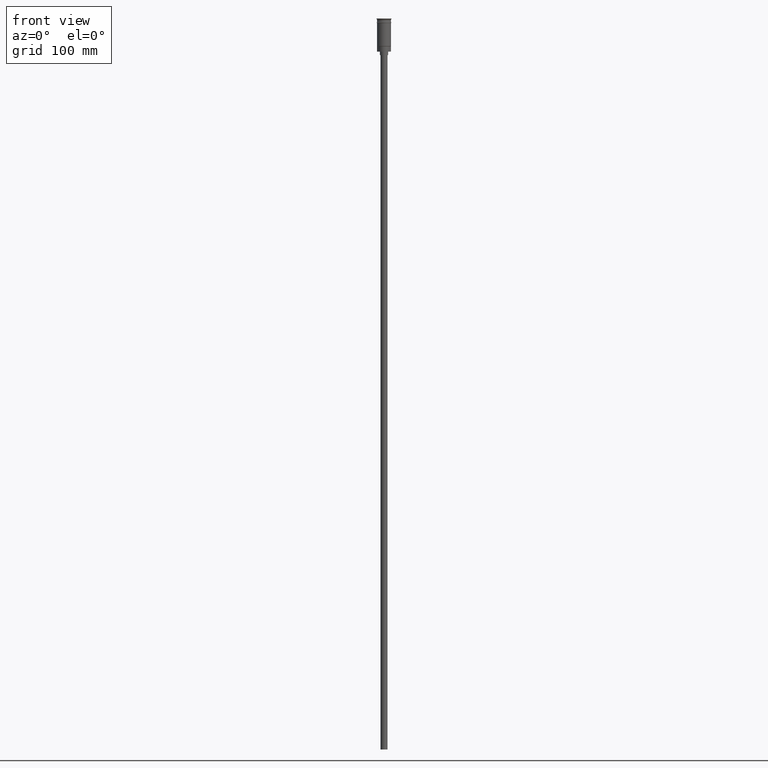
[diagram: clean part render]
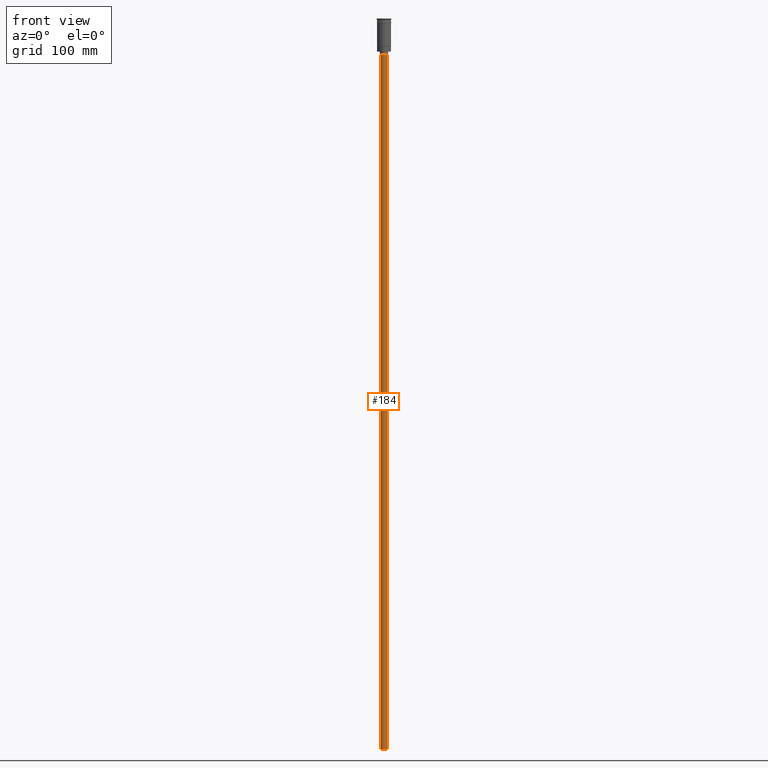
[diagram: same view with one face highlighted and labeled with its STEP entity id]
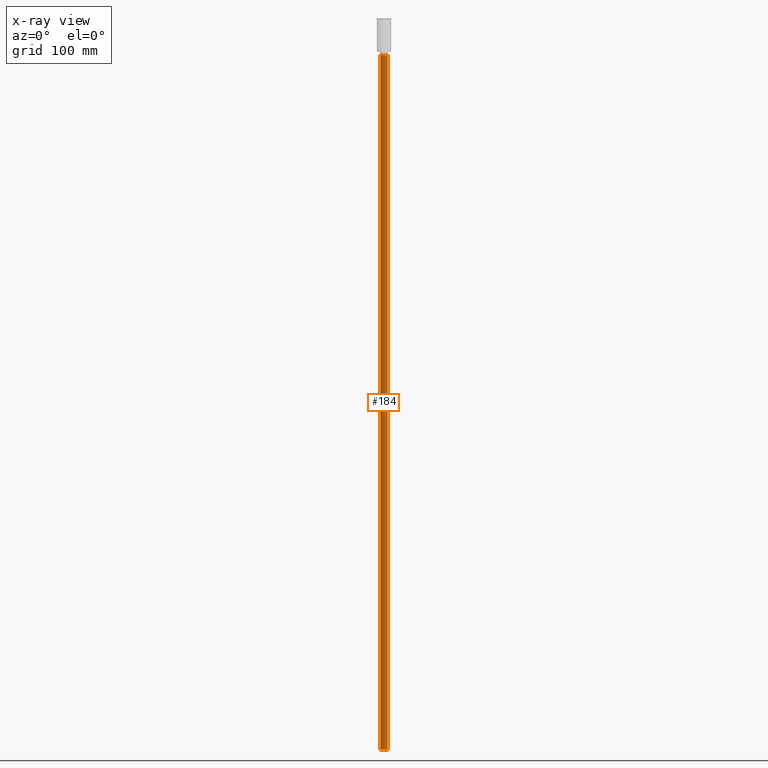
[diagram: x-ray of the same camera — body ghosted, the highlighted face saturated]
A machine part, front view. The second image highlights one B-rep face of the part: STEP entity #184.
The next image is the same camera in x-ray: the body ghosted, the highlighted face saturated — about 0% of this face is hidden behind the body in this view.
In plain terms, the highlighted cylindrical surface (edge-blend (fillet) strip) has radius 3 mm, axis along (-0, -0, 1).
Its self-contained STEP definition (entity closure, byte-faithful):
#15 = EDGE_LOOP ( 'NONE', ( #614, #791, #950, #1002 ) ) ;
#27 = CARTESIAN_POINT ( 'NONE',  ( -3.000000000000000444, 3.673940397442060361E-16, -628.5000000000000000 ) ) ;
#87 = VERTEX_POINT ( 'NONE', #1112 ) ;
#142 = VERTEX_POINT ( 'NONE', #356 ) ;
#149 = DIRECTION ( 'NONE',  ( -0.000000000000000000, -0.000000000000000000, 1.000000000000000000 ) ) ;
#184 = ADVANCED_FACE ( 'NONE', ( #1305 ), #185, .T. ) ;
#185 = CYLINDRICAL_SURFACE ( 'NONE', #1326, 3.000000000000000444 ) ;
#262 = AXIS2_PLACEMENT_3D ( 'NONE', #1507, #427, #1025 ) ;
#270 = EDGE_CURVE ( 'NONE', #87, #357, #272, .T. ) ;
#272 = LINE ( 'NONE', #1267, #1446 ) ;
#273 = VERTEX_POINT ( 'NONE', #27 ) ;
#323 = DIRECTION ( 'NONE',  ( -0.000000000000000000, -0.000000000000000000, 1.000000000000000000 ) ) ;
#342 = EDGE_CURVE ( 'NONE', #87, #273, #815, .T. ) ;
#356 = CARTESIAN_POINT ( 'NONE',  ( -3.000000000000000444, 3.673940397442060361E-16, -31.50000000000000000 ) ) ;
#357 = VERTEX_POINT ( 'NONE', #780 ) ;
#427 = DIRECTION ( 'NONE',  ( 0.000000000000000000, 0.000000000000000000, -1.000000000000000000 ) ) ;
#469 = EDGE_CURVE ( 'NONE', #273, #142, #1472, .T. ) ;
#473 = AXIS2_PLACEMENT_3D ( 'NONE', #1399, #1448, #1055 ) ;
#555 = CIRCLE ( 'NONE', #262, 3.000000000000000444 ) ;
#614 = ORIENTED_EDGE ( 'NONE', *, *, #469, .F. ) ;
#736 = DIRECTION ( 'NONE',  ( -0.000000000000000000, -0.000000000000000000, 1.000000000000000000 ) ) ;
#780 = CARTESIAN_POINT ( 'NONE',  ( 3.000000000000000444, 0.000000000000000000, -31.50000000000000000 ) ) ;
#786 = VECTOR ( 'NONE', #736, 1000.000000000000000 ) ;
#791 = ORIENTED_EDGE ( 'NONE', *, *, #342, .F. ) ;
#815 = CIRCLE ( 'NONE', #473, 3.000000000000000444 ) ;
#828 = DIRECTION ( 'NONE',  ( 1.000000000000000000, 0.000000000000000000, 0.000000000000000000 ) ) ;
#950 = ORIENTED_EDGE ( 'NONE', *, *, #270, .T. ) ;
#1002 = ORIENTED_EDGE ( 'NONE', *, *, #1516, .T. ) ;
#1025 = DIRECTION ( 'NONE',  ( -1.000000000000000000, 0.000000000000000000, 0.000000000000000000 ) ) ;
#1055 = DIRECTION ( 'NONE',  ( -1.000000000000000000, 0.000000000000000000, 0.000000000000000000 ) ) ;
#1112 = CARTESIAN_POINT ( 'NONE',  ( 3.000000000000000444, 0.000000000000000000, -628.5000000000000000 ) ) ;
#1267 = CARTESIAN_POINT ( 'NONE',  ( 3.000000000000000444, 0.000000000000000000, -628.5000000000000000 ) ) ;
#1305 = FACE_OUTER_BOUND ( 'NONE', #15, .T. ) ;
#1326 = AXIS2_PLACEMENT_3D ( 'NONE', #1518, #323, #828 ) ;
#1399 = CARTESIAN_POINT ( 'NONE',  ( 0.000000000000000000, 0.000000000000000000, -628.5000000000000000 ) ) ;
#1446 = VECTOR ( 'NONE', #149, 1000.000000000000000 ) ;
#1448 = DIRECTION ( 'NONE',  ( 0.000000000000000000, 0.000000000000000000, -1.000000000000000000 ) ) ;
#1472 = LINE ( 'NONE', #1480, #786 ) ;
#1480 = CARTESIAN_POINT ( 'NONE',  ( -3.000000000000000444, 3.673940397442060361E-16, -628.5000000000000000 ) ) ;
#1507 = CARTESIAN_POINT ( 'NONE',  ( 0.000000000000000000, 0.000000000000000000, -31.50000000000000000 ) ) ;
#1516 = EDGE_CURVE ( 'NONE', #357, #142, #555, .T. ) ;
#1518 = CARTESIAN_POINT ( 'NONE',  ( 0.000000000000000000, 0.000000000000000000, -628.5000000000000000 ) ) ;